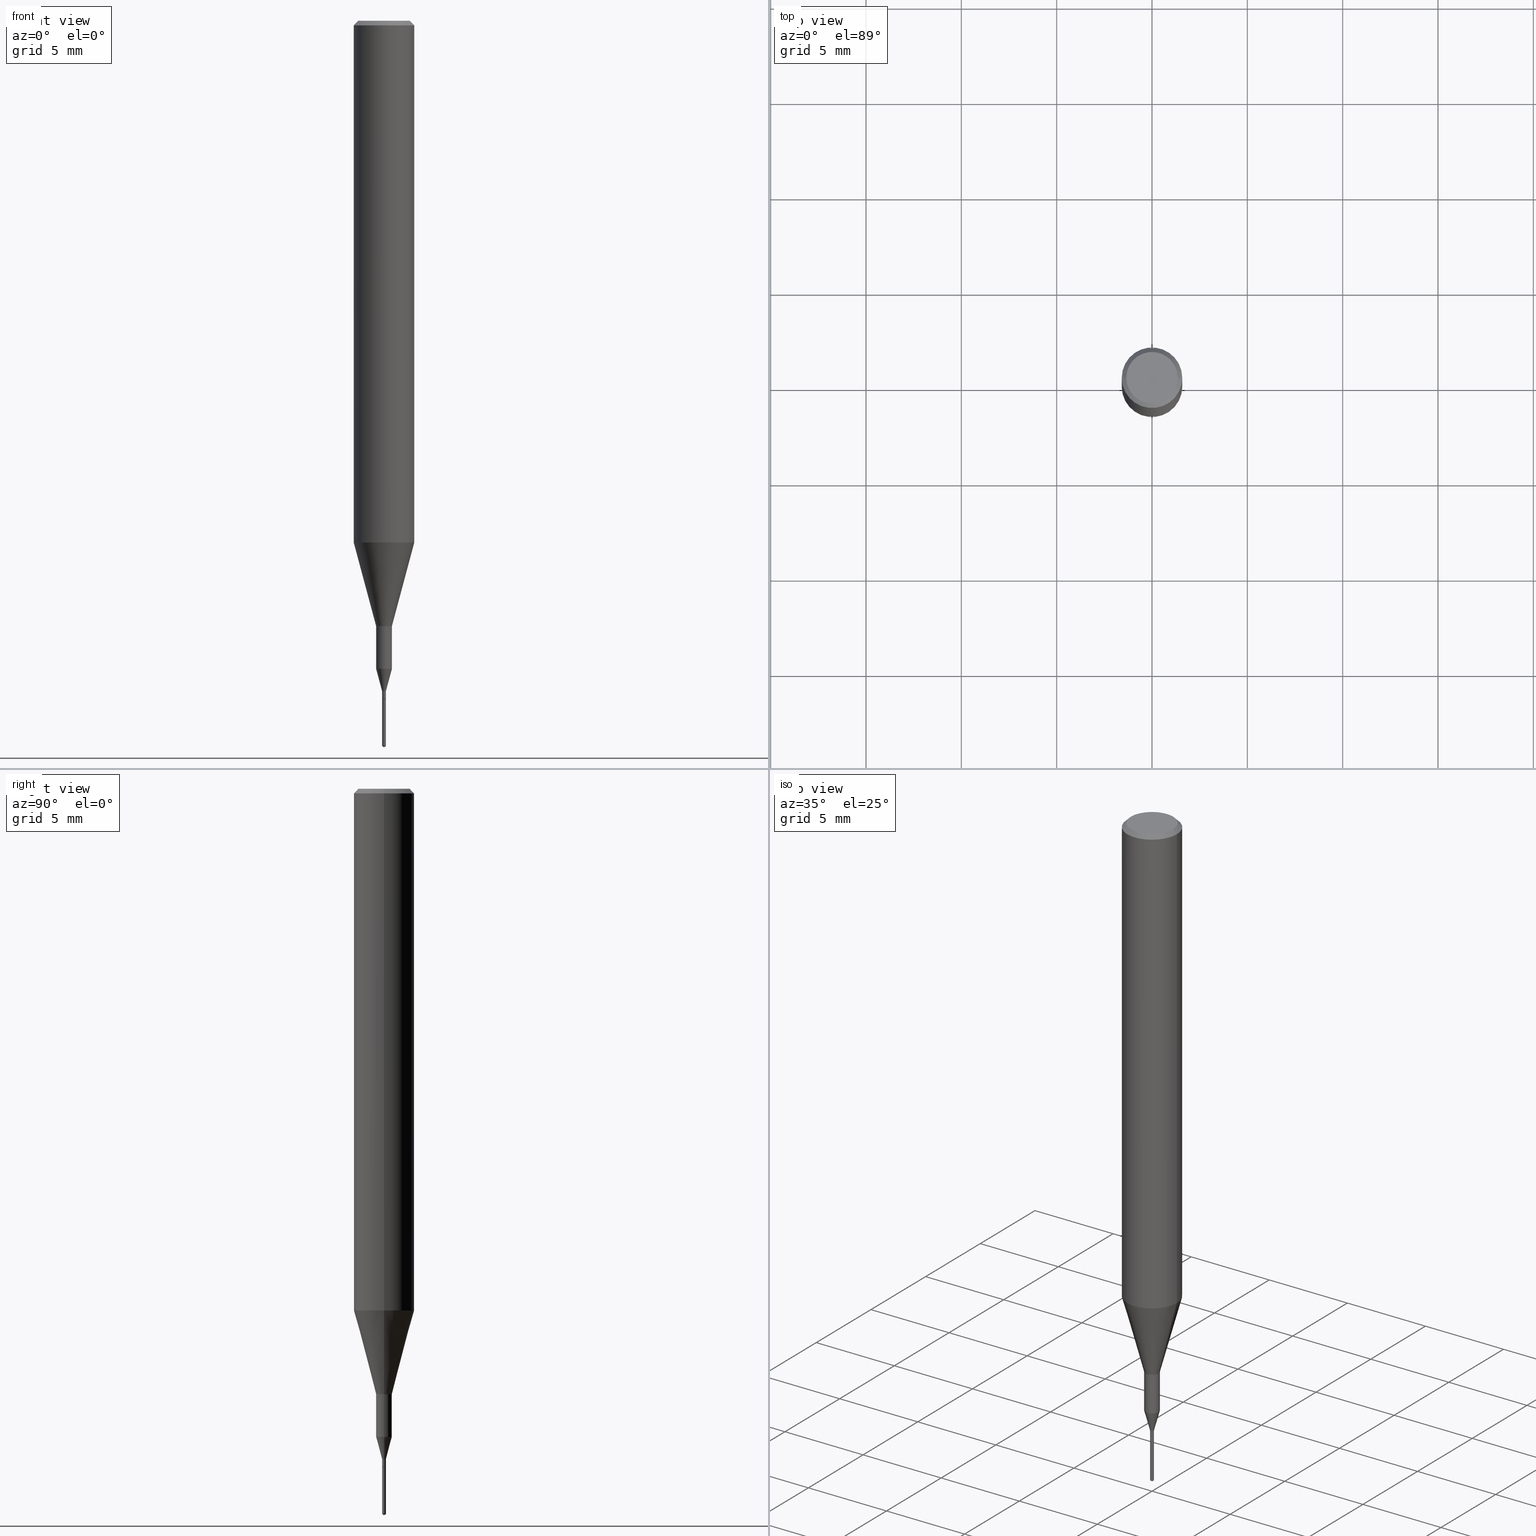
[diagram: canonical four-view strip — front | top / right | iso, engineering-drawing reading convention]
A machine part, canonical four-view strip (front | top / right | iso — engineering-drawing reading convention). The complete STEP part file that produces these views, byte-faithful:
ISO-10303-21;
HEADER;
FILE_DESCRIPTION (( 'STEP AP203' ),
    '1' );
FILE_NAME ('07078.STEP',
    '2024-04-19T13:29:38',
    ( '' ),
    ( '' ),
    'SwSTEP 2.0',
    'SolidWorks 2023',
    '' );
FILE_SCHEMA (( 'CONFIG_CONTROL_DESIGN' ));
ENDSEC;

DATA;
#1 = VECTOR ( 'NONE', #546, 39.37007874015748143 ) ;
#2 = AXIS2_PLACEMENT_3D ( 'NONE', #293, #62, #243 ) ;
#3 = VECTOR ( 'NONE', #510, 39.37007874015748854 ) ;
#4 = ORIENTED_EDGE ( 'NONE', *, *, #589, .F. ) ;
#5 = DIRECTION ( 'NONE',  ( -2.445468806185136597E-29, 3.491481338843145583E-15, 1.000000000000000000 ) ) ;
#6 = EDGE_CURVE ( 'NONE', #153, #181, #516, .T. ) ;
#7 = LINE ( 'NONE', #511, #455 ) ;
#8 = APPLICATION_CONTEXT ( 'configuration controlled 3d designs of mechanical parts and assemblies' ) ;
#9 = ORIENTED_EDGE ( 'NONE', *, *, #288, .T. ) ;
#10 = DIRECTION ( 'NONE',  ( -1.000000000000000000, 6.982962677686266711E-15, 0.000000000000000000 ) ) ;
#11 = VECTOR ( 'NONE', #93, 39.37007874015748143 ) ;
#12 = AXIS2_PLACEMENT_3D ( 'NONE', #489, #343, #80 ) ;
#13 = EDGE_CURVE ( 'NONE', #79, #117, #228, .T. ) ;
#14 = UNCERTAINTY_MEASURE_WITH_UNIT (LENGTH_MEASURE( 1.000000000000000082E-05 ), #223, 'distance_accuracy_value', 'NONE');
#15 = EDGE_LOOP ( 'NONE', ( #456, #177 ) ) ;
#16 = CARTESIAN_POINT ( 'NONE',  ( 2.292627005798581937E-31, -3.273263755165472033E-17, -0.009375000000000067307 ) ) ;
#17 = EDGE_LOOP ( 'NONE', ( #189, #75 ) ) ;
#18 = EDGE_LOOP ( 'NONE', ( #297, #391, #43 ) ) ;
#19 = MANIFOLD_SOLID_BREP ( 'Body-Move/Copy2[2]', #176 ) ;
#20 = CARTESIAN_POINT ( 'NONE',  ( 3.678012843006527062E-29, -5.223174054435368162E-15, -1.500000000000000222 ) ) ;
#21 = AXIS2_PLACEMENT_3D ( 'NONE', #541, #449, #402 ) ;
#22 = EDGE_CURVE ( 'NONE', #453, #181, #412, .T. ) ;
#23 = DIRECTION ( 'NONE',  ( 1.000000000000000000, 0.000000000000000000, 0.000000000000000000 ) ) ;
#24 = CARTESIAN_POINT ( 'NONE',  ( -9.286691297279199858E-28, 1.318548970531025661E-13, 37.87007874015748143 ) ) ;
#25 = ORIENTED_EDGE ( 'NONE', *, *, #524, .T. ) ;
#26 = EDGE_CURVE ( 'NONE', #530, #252, #317, .T. ) ;
#27 = CARTESIAN_POINT ( 'NONE',  ( -0.06250000000000000000, 4.037025298037369491E-16, -0.009375000000000067307 ) ) ;
#28 = CARTESIAN_POINT ( 'NONE',  ( -0.01624999999999999709, 1.154631945610162595E-16, -7.993269521664220284E-31 ) ) ;
#29 = EDGE_LOOP ( 'NONE', ( #68, #88, #210, #164 ) ) ;
#30 = CARTESIAN_POINT ( 'NONE',  ( 3.659701526712726431E-29, -5.249396901583489399E-15, -1.500000000000000222 ) ) ;
#31 = DATE_AND_TIME ( #490, #508 ) ;
#32 = LINE ( 'NONE', #373, #548 ) ;
#33 = EDGE_CURVE ( 'NONE', #279, #315, #184, .T. ) ;
#34 = LINE ( 'NONE', #163, #413 ) ;
#35 =( NAMED_UNIT ( * ) SI_UNIT ( $, .STERADIAN. ) SOLID_ANGLE_UNIT ( ) );
#36 = DIRECTION ( 'NONE',  ( -2.445468806185136597E-29, 3.491481338843145583E-15, 1.000000000000000000 ) ) ;
#37 = CARTESIAN_POINT ( 'NONE',  ( 0.000000000000000000, 0.000000000000000000, 0.000000000000000000 ) ) ;
#38 = EDGE_CURVE ( 'NONE', #427, #586, #182, .T. ) ;
#39 = VERTEX_POINT ( 'NONE', #540 ) ;
#40 = LINE ( 'NONE', #283, #110 ) ;
#41 = COORDINATED_UNIVERSAL_TIME_OFFSET ( 5, 0, .BEHIND. ) ;
#42 = FACE_OUTER_BOUND ( 'NONE', #98, .T. ) ;
#43 = ORIENTED_EDGE ( 'NONE', *, *, #71, .F. ) ;
#44 = VECTOR ( 'NONE', #514, 39.37007874015748143 ) ;
#45 = VECTOR ( 'NONE', #362, 39.37007874015748143 ) ;
#46 = VECTOR ( 'NONE', #105, 39.37007874015748143 ) ;
#47 = EDGE_CURVE ( 'NONE', #207, #294, #339, .T. ) ;
#48 = PERSON_AND_ORGANIZATION_ROLE ( 'classification_officer' ) ;
#49 = CC_DESIGN_PERSON_AND_ORGANIZATION_ASSIGNMENT ( #191, #48, ( #414 ) ) ;
#50 = ORIENTED_EDGE ( 'NONE', *, *, #544, .F. ) ;
#51 = DIRECTION ( 'NONE',  ( -2.452008562004351188E-29, 3.482116036290244915E-15, 1.000000000000000000 ) ) ;
#52 = CARTESIAN_POINT ( 'NONE',  ( 0.06250000000000000000, -4.691678049070464390E-16, -0.009375000000000067307 ) ) ;
#53 = APPLICATION_CONTEXT ( 'configuration controlled 3d designs of mechanical parts and assemblies' ) ;
#54 = CIRCLE ( 'NONE', #147, 0.003450000000000000809 ) ;
#55 = DIRECTION ( 'NONE',  ( 1.000000000000000000, -6.982962677686373207E-15, 0.000000000000000000 ) ) ;
#56 = CIRCLE ( 'NONE', #21, 0.06250000000000000000 ) ;
#57 = DATE_TIME_ROLE ( 'classification_date' ) ;
#58 = LOCAL_TIME ( 9, 29, 38.00000000000000000, #360 ) ;
#59 = EDGE_CURVE ( 'NONE', #542, #39, #54, .T. ) ;
#60 = DIRECTION ( 'NONE',  ( -2.452008562004351188E-29, 3.482116036290244915E-15, 1.000000000000000000 ) ) ;
#61 = ORIENTED_EDGE ( 'NONE', *, *, #300, .T. ) ;
#62 = DIRECTION ( 'NONE',  ( -2.445468806185136597E-29, 3.491481338843145583E-15, 1.000000000000000000 ) ) ;
#63 = DIRECTION ( 'NONE',  ( 1.000000000000000000, -6.982962677686233578E-15, 0.000000000000000000 ) ) ;
#64 = AXIS2_PLACEMENT_3D ( 'NONE', #323, #190, #225 ) ;
#65 = EDGE_CURVE ( 'NONE', #453, #79, #40, .T. ) ;
#66 = ADVANCED_FACE ( 'NONE', ( #126 ), #552, .T. ) ;
#67 = DIRECTION ( 'NONE',  ( 1.000000000000000000, -6.982962677686266711E-15, 4.876176775795935793E-29 ) ) ;
#68 = ORIENTED_EDGE ( 'NONE', *, *, #22, .T. ) ;
#69 = FACE_OUTER_BOUND ( 'NONE', #474, .T. ) ;
#70 = DIRECTION ( 'NONE',  ( -2.452008562004351188E-29, 3.482116036290244915E-15, 1.000000000000000000 ) ) ;
#71 = EDGE_CURVE ( 'NONE', #181, #453, #506, .T. ) ;
#72 = AXIS2_PLACEMENT_3D ( 'NONE', #212, #479, #558 ) ;
#73 = ORIENTED_EDGE ( 'NONE', *, *, #143, .F. ) ;
#74 = CYLINDRICAL_SURFACE ( 'NONE', #150, 0.003950000000000000386 ) ;
#75 = ORIENTED_EDGE ( 'NONE', *, *, #139, .T. ) ;
#76 = LINE ( 'NONE', #577, #113 ) ;
#77 = DATE_TIME_ROLE ( 'creation_date' ) ;
#78 = ORIENTED_EDGE ( 'NONE', *, *, #337, .T. ) ;
#79 = VERTEX_POINT ( 'NONE', #346 ) ;
#80 = DIRECTION ( 'NONE',  ( 1.000000000000000000, -6.982962677686258033E-15, 0.000000000000000000 ) ) ;
#81 = DIRECTION ( 'NONE',  ( 1.000000000000000000, -6.982962677686266711E-15, 4.875930095424100059E-29 ) ) ;
#82 = EDGE_LOOP ( 'NONE', ( #487, #25, #480, #429 ) ) ;
#83 = PRODUCT_DEFINITION_FORMATION_WITH_SPECIFIED_SOURCE ( 'ANY', '', #438, .NOT_KNOWN. ) ;
#84 = PLANE ( 'NONE',  #149 ) ;
#85 = DIRECTION ( 'NONE',  ( -2.445468806185136597E-29, 3.491481338843145583E-15, 1.000000000000000000 ) ) ;
#86 = VERTEX_POINT ( 'NONE', #116 ) ;
#87 = FACE_OUTER_BOUND ( 'NONE', #276, .T. ) ;
#88 = ORIENTED_EDGE ( 'NONE', *, *, #418, .T. ) ;
#89 = DIRECTION ( 'NONE',  ( 1.000000000000000000, -6.982962677686373207E-15, 0.000000000000000000 ) ) ;
#90 = LINE ( 'NONE', #545, #11 ) ;
#91 = CC_DESIGN_APPROVAL ( #409, ( #387 ) ) ;
#92 = CARTESIAN_POINT ( 'NONE',  ( 2.634730117954813298E-29, -3.761696332605275695E-15, -1.077392650149939346 ) ) ;
#93 = DIRECTION ( 'NONE',  ( -2.445468806185136877E-29, 3.491481338843145188E-15, 1.000000000000000000 ) ) ;
#94 = DIRECTION ( 'NONE',  ( -2.445468806185136877E-29, 3.491481338843145188E-15, 1.000000000000000000 ) ) ;
#95 = CYLINDRICAL_SURFACE ( 'NONE', #2, 0.06250000000000006939 ) ;
#96 = CIRCLE ( 'NONE', #377, 0.003950000000000007325 ) ;
#97 = CARTESIAN_POINT ( 'NONE',  ( 3.422433594256099443E-29, -4.886328133710982549E-15, -1.399500000000000188 ) ) ;
#98 = EDGE_LOOP ( 'NONE', ( #435, #420, #497, #512 ) ) ;
#99 = ADVANCED_FACE ( 'NONE', ( #431 ), #426, .T. ) ;
#100 = CARTESIAN_POINT ( 'NONE',  ( 2.634730117954813298E-29, -3.761696332605275695E-15, -1.077392650149939346 ) ) ;
#101 = CONICAL_SURFACE ( 'NONE', #299, 0.01625000000000000056, 0.2617993877991490193 ) ;
#102 = APPROVAL_PERSON_ORGANIZATION ( #411, #195, #462 ) ;
#103 = DIRECTION ( 'NONE',  ( -2.445468806185136597E-29, 3.491481338843145583E-15, 1.000000000000000000 ) ) ;
#104 = ORIENTED_EDGE ( 'NONE', *, *, #380, .T. ) ;
#105 = DIRECTION ( 'NONE',  ( -5.985567269335813484E-15, -0.8571673007020919055, 0.5150380749100881284 ) ) ;
#106 = EDGE_CURVE ( 'NONE', #207, #530, #519, .T. ) ;
#107 = LINE ( 'NONE', #332, #3 ) ;
#108 = CC_DESIGN_PERSON_AND_ORGANIZATION_ASSIGNMENT ( #357, #433, ( #438 ) ) ;
#109 = VERTEX_POINT ( 'NONE', #486 ) ;
#110 = VECTOR ( 'NONE', #51, 39.37007874015748143 ) ;
#111 = CIRCLE ( 'NONE', #507, 0.06250000000000012490 ) ;
#112 = ORIENTED_EDGE ( 'NONE', *, *, #579, .F. ) ;
#113 = VECTOR ( 'NONE', #172, 39.37007874015747433 ) ;
#114 = DIRECTION ( 'NONE',  ( -2.445468806185136597E-29, 3.491481338843145583E-15, 1.000000000000000000 ) ) ;
#115 = APPROVAL_ROLE ( '' ) ;
#116 = CARTESIAN_POINT ( 'NONE',  ( 0.05312499999999999861, -4.129888592719939842E-16, -5.787680772767651417E-18 ) ) ;
#117 = VERTEX_POINT ( 'NONE', #556 ) ;
#118 = EDGE_LOOP ( 'NONE', ( #193, #322, #158, #442 ) ) ;
#119 = CC_DESIGN_PERSON_AND_ORGANIZATION_ASSIGNMENT ( #485, #354, ( #387 ) ) ;
#120 = CALENDAR_DATE ( 2024, 19, 4 ) ;
#121 = CARTESIAN_POINT ( 'NONE',  ( 2.806643806256057432E-17, 0.003949999999994771062, -1.497626600554841092 ) ) ;
#122 = ORIENTED_EDGE ( 'NONE', *, *, #335, .T. ) ;
#123 = CARTESIAN_POINT ( 'NONE',  ( -0.06250000000000006939, 4.440892098500631092E-16, -3.074334431409319267E-30 ) ) ;
#124 = PERSON_AND_ORGANIZATION ( #137, #205 ) ;
#125 = CARTESIAN_POINT ( 'NONE',  ( -0.01625000000000000056, -4.557171529937700080E-15, -1.338295775066903115 ) ) ;
#126 = FACE_OUTER_BOUND ( 'NONE', #82, .T. ) ;
#127 = CIRCLE ( 'NONE', #166, 0.06250000000000000000 ) ;
#128 = COORDINATED_UNIVERSAL_TIME_OFFSET ( 5, 0, .BEHIND. ) ;
#129 = CARTESIAN_POINT ( 'NONE',  ( 0.01624999999999999709, -1.134731435124018242E-16, 7.923787260668394963E-31 ) ) ;
#130 = EDGE_LOOP ( 'NONE', ( #229, #375, #135, #353 ) ) ;
#131 = CARTESIAN_POINT ( 'NONE',  ( 3.272760571375472181E-29, -4.672634724498716266E-15, -1.338295775066903115 ) ) ;
#132 = ADVANCED_FACE ( 'NONE', ( #522 ), #281, .T. ) ;
#133 = APPROVAL_STATUS ( 'not_yet_approved' ) ;
#134 = DIRECTION ( 'NONE',  ( 1.000000000000000000, -6.982962677686373207E-15, 0.000000000000000000 ) ) ;
#135 = ORIENTED_EDGE ( 'NONE', *, *, #206, .T. ) ;
#136 = DIRECTION ( 'NONE',  ( 2.445468806185136597E-29, -3.491481338843145583E-15, -1.000000000000000000 ) ) ;
#137 = PERSON ( 'UNSPECIFIED', 'UNSPECIFIED', 'UNSPECIFIED', ('UNSPECIFIED'), ('UNSPECIFIED'), ('UNSPECIFIED') ) ;
#138 = LOCAL_TIME ( 9, 29, 38.00000000000000000, #439 ) ;
#139 = EDGE_CURVE ( 'NONE', #86, #159, #523, .T. ) ;
#140 = APPROVAL_PERSON_ORGANIZATION ( #521, #286, #267 ) ;
#141 = LINE ( 'NONE', #588, #330 ) ;
#142 = ADVANCED_FACE ( 'NONE', ( #157 ), #567, .F. ) ;
#143 = EDGE_CURVE ( 'NONE', #477, #586, #127, .T. ) ;
#144 = ADVANCED_FACE ( 'NONE', ( #69 ), #307, .T. ) ;
#145 = DIRECTION ( 'NONE',  ( -6.982962677686265922E-15, -1.000000000000000000, 0.000000000000000000 ) ) ;
#146 = DIRECTION ( 'NONE',  ( 1.000000000000000000, -6.982962677686264344E-15, 0.000000000000000000 ) ) ;
#147 = AXIS2_PLACEMENT_3D ( 'NONE', #500, #404, #89 ) ;
#148 = FACE_OUTER_BOUND ( 'NONE', #17, .T. ) ;
#149 = AXIS2_PLACEMENT_3D ( 'NONE', #275, #469, #334 ) ;
#150 = AXIS2_PLACEMENT_3D ( 'NONE', #262, #432, #501 ) ;
#151 = DIRECTION ( 'NONE',  ( 1.000000000000000000, -6.982962677686183091E-15, 0.000000000000000000 ) ) ;
#152 = DIRECTION ( 'NONE',  ( -2.445468806185136597E-29, 3.491481338843145583E-15, 1.000000000000000000 ) ) ;
#153 = VERTEX_POINT ( 'NONE', #20 ) ;
#154 = AXIS2_PLACEMENT_3D ( 'NONE', #131, #461, #359 ) ;
#155 = CONICAL_SURFACE ( 'NONE', #383, 0.003450000000000000809, 0.7853981633975555265 ) ;
#156 = VECTOR ( 'NONE', #566, 39.37007874015748143 ) ;
#157 = FACE_OUTER_BOUND ( 'NONE', #167, .T. ) ;
#158 = ORIENTED_EDGE ( 'NONE', *, *, #547, .F. ) ;
#159 = VERTEX_POINT ( 'NONE', #384 ) ;
#160 = ADVANCED_FACE ( 'NONE', ( #562 ), #483, .T. ) ;
#161 = DIRECTION ( 'NONE',  ( -2.445468806185136597E-29, 3.491481338843145583E-15, 1.000000000000000000 ) ) ;
#162 = FACE_OUTER_BOUND ( 'NONE', #389, .T. ) ;
#163 = CARTESIAN_POINT ( 'NONE',  ( 0.01625000000000000056, -4.786107868011117942E-15, -1.338295775066903115 ) ) ;
#164 = ORIENTED_EDGE ( 'NONE', *, *, #65, .F. ) ;
#165 = CLOSED_SHELL ( 'NONE', ( #531, #144, #242, #460, #142 ) ) ;
#166 = AXIS2_PLACEMENT_3D ( 'NONE', #16, #302, #476 ) ;
#167 = EDGE_LOOP ( 'NONE', ( #379, #122 ) ) ;
#168 = ORIENTED_EDGE ( 'NONE', *, *, #65, .T. ) ;
#169 = APPROVAL_DATE_TIME ( #537, #409 ) ;
#170 = CARTESIAN_POINT ( 'NONE',  ( 0.01624999999999999709, -4.477824817066334148E-15, -1.250000000000000000 ) ) ;
#171 = EDGE_CURVE ( 'NONE', #39, #542, #258, .T. ) ;
#172 = DIRECTION ( 'NONE',  ( -0.2588190451025214611, 5.211531920934551042E-15, 0.9659258262890682012 ) ) ;
#173 = CARTESIAN_POINT ( 'NONE',  ( 0.000000000000000000, 0.000000000000000000, 0.000000000000000000 ) ) ;
#174 = FACE_OUTER_BOUND ( 'NONE', #15, .T. ) ;
#175 = CYLINDRICAL_SURFACE ( 'NONE', #318, 0.003950000000000021202 ) ;
#176 = CLOSED_SHELL ( 'NONE', ( #535, #422, #66, #568, #324, #232, #488, #356, #244, #518, #274, #160, #132, #99, #405, #394 ) ) ;
#177 = ORIENTED_EDGE ( 'NONE', *, *, #59, .F. ) ;
#178 = AXIS2_PLACEMENT_3D ( 'NONE', #581, #538, #55 ) ;
#179 = EDGE_CURVE ( 'NONE', #245, #315, #585, .T. ) ;
#180 = LINE ( 'NONE', #238, #198 ) ;
#181 = VERTEX_POINT ( 'NONE', #121 ) ;
#182 = LINE ( 'NONE', #123, #1 ) ;
#183 = CARTESIAN_POINT ( 'NONE',  ( -2.758270257682411282E-17, -0.003950000000005227108, -1.497626600554841092 ) ) ;
#184 = CIRCLE ( 'NONE', #270, 0.003950000000000035948 ) ;
#185 = DIRECTION ( 'NONE',  ( 1.000000000000000000, -6.982962677686233578E-15, 0.000000000000000000 ) ) ;
#186 = CONICAL_SURFACE ( 'NONE', #553, 0.06250000000000000000, 0.7853981633974452814 ) ;
#187 = CALENDAR_DATE ( 2024, 19, 4 ) ;
#188 = CYLINDRICAL_SURFACE ( 'NONE', #349, 0.003950000000000000386 ) ;
#189 = ORIENTED_EDGE ( 'NONE', *, *, #213, .T. ) ;
#190 = DIRECTION ( 'NONE',  ( -2.452008562004351188E-29, 3.482116036290244915E-15, 1.000000000000000000 ) ) ;
#191 = PERSON_AND_ORGANIZATION ( #137, #205 ) ;
#192 = DIRECTION ( 'NONE',  ( 1.000000000000000000, -6.982962677686373207E-15, 0.000000000000000000 ) ) ;
#193 = ORIENTED_EDGE ( 'NONE', *, *, #33, .T. ) ;
#194 = DIRECTION ( 'NONE',  ( 2.445468806185136597E-29, -3.491481338843145583E-15, -1.000000000000000000 ) ) ;
#195 = APPROVAL ( #133, 'UNSPECIFIED' ) ;
#196 = ORIENTED_EDGE ( 'NONE', *, *, #47, .F. ) ;
#197 = CARTESIAN_POINT ( 'NONE',  ( 7.076796394983739835E-47, -1.010378970665454992E-32, -2.893840386385196200E-18 ) ) ;
#198 = VECTOR ( 'NONE', #505, 39.37007874015747433 ) ;
#199 = CARTESIAN_POINT ( 'NONE',  ( 2.634730117954813298E-29, -3.761696332605275695E-15, -1.077392650149939346 ) ) ;
#200 = CARTESIAN_POINT ( 'NONE',  ( 3.678173411635649529E-29, -5.223174054435366584E-15, -1.500000000000000222 ) ) ;
#201 = ADVANCED_BREP_SHAPE_REPRESENTATION ( '07078', ( #590, #19, #573 ), #350 ) ;
#202 = CARTESIAN_POINT ( 'NONE',  ( 3.056836007731421306E-29, -4.364351673553932471E-15, -1.250000000000000000 ) ) ;
#203 = LINE ( 'NONE', #30, #46 ) ;
#204 = AXIS2_PLACEMENT_3D ( 'NONE', #260, #336, #251 ) ;
#205 = ORGANIZATION ( 'UNSPECIFIED', 'UNSPECIFIED', '' ) ;
#206 = EDGE_CURVE ( 'NONE', #294, #252, #358, .T. ) ;
#207 = VERTEX_POINT ( 'NONE', #416 ) ;
#208 = CARTESIAN_POINT ( 'NONE',  ( 0.06250000000000000000, -4.615137624123754923E-16, -0.009375000000000067307 ) ) ;
#209 = FACE_OUTER_BOUND ( 'NONE', #388, .T. ) ;
#210 = ORIENTED_EDGE ( 'NONE', *, *, #13, .F. ) ;
#211 = ORIENTED_EDGE ( 'NONE', *, *, #71, .T. ) ;
#212 = CARTESIAN_POINT ( 'NONE',  ( 1.415359278996747967E-46, -2.020757941330909984E-32, -5.787680772770392401E-18 ) ) ;
#213 = EDGE_CURVE ( 'NONE', #159, #86, #237, .T. ) ;
#214 = ORIENTED_EDGE ( 'NONE', *, *, #106, .T. ) ;
#215 = DIRECTION ( 'NONE',  ( 6.090539988449647485E-15, 0.8571673007020955692, 0.5150380749100821332 ) ) ;
#216 = ORIENTED_EDGE ( 'NONE', *, *, #179, .F. ) ;
#217 = CALENDAR_DATE ( 2024, 19, 4 ) ;
#218 = CONICAL_SURFACE ( 'NONE', #64, 65.52281426576307410, 1.029744258676618340 ) ;
#219 = CARTESIAN_POINT ( 'NONE',  ( 3.423656328659191123E-29, -4.888073874380404052E-15, -1.400000000000000133 ) ) ;
#220 = CONICAL_SURFACE ( 'NONE', #284, 0.06250000000000000000, 0.7853981633974452814 ) ;
#221 = ORIENTED_EDGE ( 'NONE', *, *, #22, .F. ) ;
#222 = CARTESIAN_POINT ( 'NONE',  ( 0.000000000000000000, 0.000000000000000000, 0.000000000000000000 ) ) ;
#223 =( CONVERSION_BASED_UNIT ( 'INCH', #448 ) LENGTH_UNIT ( ) NAMED_UNIT ( #347 ) );
#224 = DIRECTION ( 'NONE',  ( 1.000000000000000000, -6.982962677686258033E-15, 0.000000000000000000 ) ) ;
#225 = DIRECTION ( 'NONE',  ( -6.982962677686265133E-15, -1.000000000000000000, 3.468864327941877810E-15 ) ) ;
#226 = ORIENTED_EDGE ( 'NONE', *, *, #213, .F. ) ;
#227 = PERSON_AND_ORGANIZATION ( #137, #205 ) ;
#228 = CIRCLE ( 'NONE', #236, 0.003950000000000000386 ) ;
#229 = ORIENTED_EDGE ( 'NONE', *, *, #106, .F. ) ;
#230 = AXIS2_PLACEMENT_3D ( 'NONE', #551, #555, #151 ) ;
#231 = PRODUCT_DEFINITION_SHAPE ( 'NONE', 'NONE',  #387 ) ;
#232 = ADVANCED_FACE ( 'NONE', ( #533 ), #175, .T. ) ;
#233 = EDGE_LOOP ( 'NONE', ( #397, #382, #342, #112 ) ) ;
#234 = DIRECTION ( 'NONE',  ( -2.445468806185136597E-29, 3.491481338843145583E-15, 1.000000000000000000 ) ) ;
#235 = EDGE_CURVE ( 'NONE', #315, #207, #550, .T. ) ;
#236 = AXIS2_PLACEMENT_3D ( 'NONE', #303, #478, #392 ) ;
#237 = CIRCLE ( 'NONE', #325, 0.05312499999999999861 ) ;
#238 = CARTESIAN_POINT ( 'NONE',  ( 0.06250000000000012490, -4.198131499960668153E-15, -1.077392650149939346 ) ) ;
#239 = DATE_AND_TIME ( #217, #138 ) ;
#240 = DIRECTION ( 'NONE',  ( -2.445468806185136597E-29, 3.491481338843145583E-15, 1.000000000000000000 ) ) ;
#241 = ORIENTED_EDGE ( 'NONE', *, *, #454, .F. ) ;
#242 = ADVANCED_FACE ( 'NONE', ( #272 ), #218, .T. ) ;
#243 = DIRECTION ( 'NONE',  ( 1.000000000000000000, -6.982962677686266711E-15, 4.876176775795935793E-29 ) ) ;
#244 = ADVANCED_FACE ( 'NONE', ( #42 ), #292, .T. ) ;
#245 = VERTEX_POINT ( 'NONE', #446 ) ;
#246 = DIRECTION ( 'NONE',  ( 1.000000000000000000, -6.982962677686264344E-15, 0.000000000000000000 ) ) ;
#247 = AXIS2_PLACEMENT_3D ( 'NONE', #473, #152, #67 ) ;
#248 = VECTOR ( 'NONE', #215, 39.37007874015748854 ) ;
#249 = CONICAL_SURFACE ( 'NONE', #393, 0.01625000000000000056, 0.2617993877991490193 ) ;
#250 = AXIS2_PLACEMENT_3D ( 'NONE', #305, #565, #371 ) ;
#251 = DIRECTION ( 'NONE',  ( 6.982962677686265922E-15, 1.000000000000000000, -3.482116036290244915E-15 ) ) ;
#252 = VERTEX_POINT ( 'NONE', #170 ) ;
#253 = DIRECTION ( 'NONE',  ( -1.000000000000000000, 6.982962677686266711E-15, 0.000000000000000000 ) ) ;
#254 = EDGE_CURVE ( 'NONE', #542, #245, #32, .T. ) ;
#255 = DIRECTION ( 'NONE',  ( -6.982962677686265922E-15, -1.000000000000000000, 0.000000000000000000 ) ) ;
#256 = CARTESIAN_POINT ( 'NONE',  ( -0.003450000000000000809, -4.860910922822568939E-15, -1.400000000000000133 ) ) ;
#257 = AXIS2_PLACEMENT_3D ( 'NONE', #92, #316, #492 ) ;
#258 = CIRCLE ( 'NONE', #559, 0.003450000000000000809 ) ;
#259 = LOCAL_TIME ( 9, 29, 38.00000000000000000, #41 ) ;
#260 = CARTESIAN_POINT ( 'NONE',  ( 3.423656328659191123E-29, -4.888073874380404052E-15, -1.400000000000000133 ) ) ;
#261 = ORIENTED_EDGE ( 'NONE', *, *, #380, .F. ) ;
#262 = CARTESIAN_POINT ( 'NONE',  ( 3.423656328659191123E-29, -4.888073874380404052E-15, -1.400000000000000133 ) ) ;
#263 = CC_DESIGN_DATE_AND_TIME_ASSIGNMENT ( #31, #77, ( #387 ) ) ;
#264 = DIRECTION ( 'NONE',  ( 0.000000000000000000, 0.000000000000000000, 1.000000000000000000 ) ) ;
#265 = CARTESIAN_POINT ( 'NONE',  ( 0.000000000000000000, 0.000000000000000000, 0.000000000000000000 ) ) ;
#266 = ORIENTED_EDGE ( 'NONE', *, *, #589, .T. ) ;
#267 = APPROVAL_ROLE ( '' ) ;
#268 = DIRECTION ( 'NONE',  ( -2.445468806185136597E-29, 3.491481338843145583E-15, 1.000000000000000000 ) ) ;
#269 = LINE ( 'NONE', #208, #554 ) ;
#270 = AXIS2_PLACEMENT_3D ( 'NONE', #457, #498, #287 ) ;
#271 = VECTOR ( 'NONE', #319, 39.37007874015748143 ) ;
#272 = FACE_OUTER_BOUND ( 'NONE', #18, .T. ) ;
#273 = ORIENTED_EDGE ( 'NONE', *, *, #335, .F. ) ;
#274 = ADVANCED_FACE ( 'NONE', ( #291 ), #249, .T. ) ;
#275 = CARTESIAN_POINT ( 'NONE',  ( 3.423656328659191123E-29, -4.888073874380404052E-15, -1.400000000000000133 ) ) ;
#276 = EDGE_LOOP ( 'NONE', ( #484, #403, #557, #4 ) ) ;
#277 = CALENDAR_DATE ( 2024, 19, 4 ) ;
#278 = DIRECTION ( 'NONE',  ( 1.000000000000000000, -6.982962677686258033E-15, 0.000000000000000000 ) ) ;
#279 = VERTEX_POINT ( 'NONE', #321 ) ;
#280 = CARTESIAN_POINT ( 'NONE',  ( 2.292627005798581937E-31, -3.273263755165472033E-17, -0.009375000000000067307 ) ) ;
#281 = CONICAL_SURFACE ( 'NONE', #569, 0.06250000000000012490, 0.2617993877991501295 ) ;
#282 = ORIENTED_EDGE ( 'NONE', *, *, #547, .T. ) ;
#283 = CARTESIAN_POINT ( 'NONE',  ( -2.758270257682651329E-17, -0.003950000000004887969, -1.400000000000000133 ) ) ;
#284 = AXIS2_PLACEMENT_3D ( 'NONE', #280, #136, #253 ) ;
#285 = PERSON_AND_ORGANIZATION_ROLE ( 'design_supplier' ) ;
#286 = APPROVAL ( #308, 'UNSPECIFIED' ) ;
#287 = DIRECTION ( 'NONE',  ( 1.000000000000000000, -6.982962677686183091E-15, 0.000000000000000000 ) ) ;
#288 = EDGE_CURVE ( 'NONE', #109, #427, #572, .T. ) ;
#289 = COORDINATED_UNIVERSAL_TIME_OFFSET ( 5, 0, .BEHIND. ) ;
#290 = CARTESIAN_POINT ( 'NONE',  ( 3.423656328659191123E-29, -4.888073874380404052E-15, -1.400000000000000133 ) ) ;
#291 = FACE_OUTER_BOUND ( 'NONE', #441, .T. ) ;
#292 = CONICAL_SURFACE ( 'NONE', #178, 0.003450000000000000809, 0.7853981633975555265 ) ;
#293 = CARTESIAN_POINT ( 'NONE',  ( 0.000000000000000000, 0.000000000000000000, 0.000000000000000000 ) ) ;
#294 = VERTEX_POINT ( 'NONE', #529 ) ;
#295 = DIRECTION ( 'NONE',  ( -2.445468806185136597E-29, 3.491481338843145583E-15, 1.000000000000000000 ) ) ;
#296 = CARTESIAN_POINT ( 'NONE',  ( -0.06250000000000000000, -1.453125275228401137E-15, -0.009375000000000067307 ) ) ;
#297 = ORIENTED_EDGE ( 'NONE', *, *, #6, .F. ) ;
#298 = DIRECTION ( 'NONE',  ( -2.452008562004351188E-29, 3.482116036290244915E-15, 1.000000000000000000 ) ) ;
#299 = AXIS2_PLACEMENT_3D ( 'NONE', #494, #36, #224 ) ;
#300 = EDGE_CURVE ( 'NONE', #252, #109, #180, .T. ) ;
#301 = DIRECTION ( 'NONE',  ( -6.982962677686265922E-15, -1.000000000000000000, 0.000000000000000000 ) ) ;
#302 = DIRECTION ( 'NONE',  ( -2.445468806185136597E-29, 3.491481338843145583E-15, 1.000000000000000000 ) ) ;
#303 = CARTESIAN_POINT ( 'NONE',  ( 3.423656328659191123E-29, -4.888073874380404052E-15, -1.400000000000000133 ) ) ;
#304 = DIRECTION ( 'NONE',  ( 1.000000000000000000, -6.982962677686264344E-15, 0.000000000000000000 ) ) ;
#305 = CARTESIAN_POINT ( 'NONE',  ( 0.000000000000000000, 0.000000000000000000, 0.000000000000000000 ) ) ;
#306 = CC_DESIGN_DATE_AND_TIME_ASSIGNMENT ( #451, #57, ( #414 ) ) ;
#307 = CONICAL_SURFACE ( 'NONE', #536, 65.52281426576307410, 1.029744258676618340 ) ;
#308 = APPROVAL_STATUS ( 'not_yet_approved' ) ;
#309 = EDGE_LOOP ( 'NONE', ( #491, #104, #534, #338 ) ) ;
#310 = ORIENTED_EDGE ( 'NONE', *, *, #26, .T. ) ;
#311 = ORIENTED_EDGE ( 'NONE', *, *, #38, .T. ) ;
#312 = DIRECTION ( 'NONE',  ( 1.000000000000000000, -6.982962677686288799E-15, 0.000000000000000000 ) ) ;
#313 =( NAMED_UNIT ( * ) PLANE_ANGLE_UNIT ( ) SI_UNIT ( $, .RADIAN. ) );
#314 = CARTESIAN_POINT ( 'NONE',  ( -0.003950000000000021202, 2.806643806252410799E-17, -1.942979360650698347E-31 ) ) ;
#315 = VERTEX_POINT ( 'NONE', #329 ) ;
#316 = DIRECTION ( 'NONE',  ( -2.445468806185136597E-29, 3.491481338843145583E-15, 1.000000000000000000 ) ) ;
#317 = CIRCLE ( 'NONE', #499, 0.01624999999999999709 ) ;
#318 = AXIS2_PLACEMENT_3D ( 'NONE', #37, #5, #355 ) ;
#319 = DIRECTION ( 'NONE',  ( -2.445468806185136877E-29, 3.491481338843145188E-15, 1.000000000000000000 ) ) ;
#320 = CC_DESIGN_APPROVAL ( #286, ( #83 ) ) ;
#321 = CARTESIAN_POINT ( 'NONE',  ( 0.003950000000000035948, -4.860491171803543507E-15, -1.384200000000000319 ) ) ;
#322 = ORIENTED_EDGE ( 'NONE', *, *, #235, .T. ) ;
#323 = CARTESIAN_POINT ( 'NONE',  ( -9.286691297279199858E-28, 1.318548970531025661E-13, 37.87007874015748143 ) ) ;
#324 = ADVANCED_FACE ( 'NONE', ( #440 ), #101, .T. ) ;
#325 = AXIS2_PLACEMENT_3D ( 'NONE', #452, #85, #81 ) ;
#326 = AXIS2_PLACEMENT_3D ( 'NONE', #396, #464, #146 ) ;
#327 = FACE_OUTER_BOUND ( 'NONE', #415, .T. ) ;
#328 = APPROVAL_DATE_TIME ( #239, #286 ) ;
#329 = CARTESIAN_POINT ( 'NONE',  ( -0.003950000000000035080, -4.831551863406308339E-15, -1.384200000000000319 ) ) ;
#330 = VECTOR ( 'NONE', #463, 39.37007874015748143 ) ;
#331 = DIRECTION ( 'NONE',  ( -1.000000000000000000, 6.982962677686265922E-15, -4.876176775795935793E-29 ) ) ;
#332 = CARTESIAN_POINT ( 'NONE',  ( 0.003450000000000000809, -4.912165095618421590E-15, -1.400000000000000133 ) ) ;
#333 = ORIENTED_EDGE ( 'NONE', *, *, #206, .F. ) ;
#334 = DIRECTION ( 'NONE',  ( 1.000000000000000000, -6.982962677686265922E-15, 4.876176775795935793E-29 ) ) ;
#335 = EDGE_CURVE ( 'NONE', #117, #79, #515, .T. ) ;
#336 = DIRECTION ( 'NONE',  ( 2.452008562004350908E-29, -3.482116036290244915E-15, -1.000000000000000000 ) ) ;
#337 = EDGE_CURVE ( 'NONE', #586, #477, #56, .T. ) ;
#338 = ORIENTED_EDGE ( 'NONE', *, *, #337, .F. ) ;
#339 = CIRCLE ( 'NONE', #154, 0.01625000000000000056 ) ;
#340 = CIRCLE ( 'NONE', #12, 0.01625000000000000056 ) ;
#341 = DESIGN_CONTEXT ( 'detailed design', #8, 'design' ) ;
#342 = ORIENTED_EDGE ( 'NONE', *, *, #374, .F. ) ;
#343 = DIRECTION ( 'NONE',  ( -2.445468806185136597E-29, 3.491481338843145583E-15, 1.000000000000000000 ) ) ;
#344 = ORIENTED_EDGE ( 'NONE', *, *, #33, .F. ) ;
#345 = APPROVAL_STATUS ( 'not_yet_approved' ) ;
#346 = CARTESIAN_POINT ( 'NONE',  ( -2.758270257682651638E-17, -0.003950000000004888837, -1.400000000000000133 ) ) ;
#347 = DIMENSIONAL_EXPONENTS ( 1.000000000000000000, 0.000000000000000000, 0.000000000000000000, 0.000000000000000000, 0.000000000000000000, 0.000000000000000000, 0.000000000000000000 ) ;
#348 = VERTEX_POINT ( 'NONE', #575 ) ;
#349 = AXIS2_PLACEMENT_3D ( 'NONE', #458, #60, #145 ) ;
#350 =( GEOMETRIC_REPRESENTATION_CONTEXT ( 3 ) GLOBAL_UNCERTAINTY_ASSIGNED_CONTEXT ( ( #14 ) ) GLOBAL_UNIT_ASSIGNED_CONTEXT ( ( #223, #313, #35 ) ) REPRESENTATION_CONTEXT ( 'NONE', 'WORKASPACE' ) );
#351 = MECHANICAL_CONTEXT ( 'NONE', #53, 'mechanical' ) ;
#352 = ORIENTED_EDGE ( 'NONE', *, *, #454, .T. ) ;
#353 = ORIENTED_EDGE ( 'NONE', *, *, #26, .F. ) ;
#354 = PERSON_AND_ORGANIZATION_ROLE ( 'creator' ) ;
#355 = DIRECTION ( 'NONE',  ( 1.000000000000000000, -6.982962677686266711E-15, 4.876176775795935793E-29 ) ) ;
#356 = ADVANCED_FACE ( 'NONE', ( #174 ), #84, .F. ) ;
#357 = PERSON_AND_ORGANIZATION ( #137, #205 ) ;
#358 = LINE ( 'NONE', #129, #472 ) ;
#359 = DIRECTION ( 'NONE',  ( 1.000000000000000000, -6.982962677686258033E-15, 0.000000000000000000 ) ) ;
#360 = COORDINATED_UNIVERSAL_TIME_OFFSET ( 5, 0, .BEHIND. ) ;
#361 = CIRCLE ( 'NONE', #230, 0.003950000000000035948 ) ;
#362 = DIRECTION ( 'NONE',  ( -0.2588190451025203509, 5.211531920934543942E-15, 0.9659258262890684232 ) ) ;
#363 = APPROVAL_PERSON_ORGANIZATION ( #124, #409, #115 ) ;
#364 = ORIENTED_EDGE ( 'NONE', *, *, #374, .T. ) ;
#365 = DIRECTION ( 'NONE',  ( -2.452008562004351188E-29, 3.482116036290244915E-15, 1.000000000000000000 ) ) ;
#366 = ORIENTED_EDGE ( 'NONE', *, *, #418, .F. ) ;
#367 = PRODUCT_RELATED_PRODUCT_CATEGORY ( 'detail', '', ( #438 ) ) ;
#368 = EDGE_CURVE ( 'NONE', #315, #279, #361, .T. ) ;
#369 = SECURITY_CLASSIFICATION_LEVEL ( 'unclassified' ) ;
#370 = FACE_OUTER_BOUND ( 'NONE', #233, .T. ) ;
#371 = DIRECTION ( 'NONE',  ( 1.000000000000000000, -6.982962677686267499E-15, 4.876176775795936353E-29 ) ) ;
#372 = CARTESIAN_POINT ( 'NONE',  ( 3.422433594256099443E-29, -4.886328133710982549E-15, -1.399500000000000188 ) ) ;
#373 = CARTESIAN_POINT ( 'NONE',  ( -0.003450000000000000809, -4.863560149996680140E-15, -1.400000000000000133 ) ) ;
#374 = EDGE_CURVE ( 'NONE', #348, #245, #96, .T. ) ;
#375 = ORIENTED_EDGE ( 'NONE', *, *, #47, .T. ) ;
#376 = DIRECTION ( 'NONE',  ( 2.438088387897960049E-29, -3.491481338843145188E-15, -1.000000000000000000 ) ) ;
#377 = AXIS2_PLACEMENT_3D ( 'NONE', #97, #295, #63 ) ;
#378 = CARTESIAN_POINT ( 'NONE',  ( 2.292627005798581937E-31, -3.273263755165472033E-17, -0.009375000000000067307 ) ) ;
#379 = ORIENTED_EDGE ( 'NONE', *, *, #13, .T. ) ;
#380 = EDGE_CURVE ( 'NONE', #427, #109, #111, .T. ) ;
#381 = ORIENTED_EDGE ( 'NONE', *, *, #513, .T. ) ;
#382 = ORIENTED_EDGE ( 'NONE', *, *, #254, .T. ) ;
#383 = AXIS2_PLACEMENT_3D ( 'NONE', #290, #240, #192 ) ;
#384 = CARTESIAN_POINT ( 'NONE',  ( -0.05312499999999999861, 3.873362110279099094E-16, -5.787680772773044021E-18 ) ) ;
#385 = DIRECTION ( 'NONE',  ( 0.7071067811865453523, -7.319954787623248157E-15, -0.7071067811865496822 ) ) ;
#386 = FACE_OUTER_BOUND ( 'NONE', #29, .T. ) ;
#387 = PRODUCT_DEFINITION ( 'UNKNOWN', '', #83, #341 ) ;
#388 = EDGE_LOOP ( 'NONE', ( #216, #410, #352, #504 ) ) ;
#389 = EDGE_LOOP ( 'NONE', ( #282, #214, #50, #333 ) ) ;
#390 = DIRECTION ( 'NONE',  ( -6.982962677686265133E-15, -1.000000000000000000, 3.468864327941877810E-15 ) ) ;
#391 = ORIENTED_EDGE ( 'NONE', *, *, #517, .T. ) ;
#392 = DIRECTION ( 'NONE',  ( -6.982962677686266711E-15, -1.000000000000000000, 0.000000000000000000 ) ) ;
#393 = AXIS2_PLACEMENT_3D ( 'NONE', #495, #578, #278 ) ;
#394 = ADVANCED_FACE ( 'NONE', ( #148 ), #421, .F. ) ;
#395 = AXIS2_PLACEMENT_3D ( 'NONE', #222, #114, #398 ) ;
#396 = CARTESIAN_POINT ( 'NONE',  ( 2.634730117954813298E-29, -3.761696332605275695E-15, -1.077392650149939346 ) ) ;
#397 = ORIENTED_EDGE ( 'NONE', *, *, #171, .T. ) ;
#398 = DIRECTION ( 'NONE',  ( 1.000000000000000000, -6.982962677686266711E-15, 4.876176775795935793E-29 ) ) ;
#399 = DIRECTION ( 'NONE',  ( -6.982962677686266711E-15, -1.000000000000000000, 0.000000000000000000 ) ) ;
#400 = ORIENTED_EDGE ( 'NONE', *, *, #368, .T. ) ;
#401 = CARTESIAN_POINT ( 'NONE',  ( 3.663037589099040294E-29, -5.228021025740917797E-15, -1.497626600554841092 ) ) ;
#402 = DIRECTION ( 'NONE',  ( 1.000000000000000000, -6.982962677686266711E-15, 0.000000000000000000 ) ) ;
#403 = ORIENTED_EDGE ( 'NONE', *, *, #560, .T. ) ;
#404 = DIRECTION ( 'NONE',  ( -2.445468806185136597E-29, 3.491481338843145583E-15, 1.000000000000000000 ) ) ;
#405 = ADVANCED_FACE ( 'NONE', ( #468 ), #186, .T. ) ;
#406 = PERSON_AND_ORGANIZATION ( #137, #205 ) ;
#407 = AXIS2_PLACEMENT_3D ( 'NONE', #219, #365, #399 ) ;
#408 = DIRECTION ( 'NONE',  ( -0.7071067811866232899, 7.493145998870627106E-15, 0.7071067811864715225 ) ) ;
#409 = APPROVAL ( #345, 'UNSPECIFIED' ) ;
#410 = ORIENTED_EDGE ( 'NONE', *, *, #437, .T. ) ;
#411 = PERSON_AND_ORGANIZATION ( #137, #205 ) ;
#412 = CIRCLE ( 'NONE', #443, 0.003949999999999999518 ) ;
#413 = VECTOR ( 'NONE', #525, 39.37007874015748143 ) ;
#414 = SECURITY_CLASSIFICATION ( '', '', #369 ) ;
#415 = EDGE_LOOP ( 'NONE', ( #366, #211, #168, #273 ) ) ;
#416 = CARTESIAN_POINT ( 'NONE',  ( -0.01625000000000000056, -4.557171529937700080E-15, -1.338295775066903115 ) ) ;
#417 = SHAPE_DEFINITION_REPRESENTATION ( #231, #201 ) ;
#418 = EDGE_CURVE ( 'NONE', #181, #117, #7, .T. ) ;
#419 = CARTESIAN_POINT ( 'NONE',  ( -0.06250000000000012490, -3.317607122755211895E-15, -1.077392650149939346 ) ) ;
#420 = ORIENTED_EDGE ( 'NONE', *, *, #59, .T. ) ;
#421 = PLANE ( 'NONE',  #466 ) ;
#422 = ADVANCED_FACE ( 'NONE', ( #471 ), #95, .T. ) ;
#423 = LINE ( 'NONE', #27, #156 ) ;
#424 = AXIS2_PLACEMENT_3D ( 'NONE', #265, #161, #434 ) ;
#425 = CC_DESIGN_SECURITY_CLASSIFICATION ( #414, ( #83 ) ) ;
#426 = CYLINDRICAL_SURFACE ( 'NONE', #247, 0.06250000000000006939 ) ;
#427 = VERTEX_POINT ( 'NONE', #419 ) ;
#428 = DIRECTION ( 'NONE',  ( -2.452008562004351188E-29, 3.482116036290244915E-15, 1.000000000000000000 ) ) ;
#429 = ORIENTED_EDGE ( 'NONE', *, *, #300, .F. ) ;
#430 =( LENGTH_UNIT ( ) NAMED_UNIT ( * ) SI_UNIT ( $, .METRE. ) );
#431 = FACE_OUTER_BOUND ( 'NONE', #309, .T. ) ;
#432 = DIRECTION ( 'NONE',  ( -2.452008562004351188E-29, 3.482116036290244915E-15, 1.000000000000000000 ) ) ;
#433 = PERSON_AND_ORGANIZATION_ROLE ( 'design_owner' ) ;
#434 = DIRECTION ( 'NONE',  ( 1.000000000000000000, -6.982962677686267499E-15, 4.876176775795936353E-29 ) ) ;
#435 = ORIENTED_EDGE ( 'NONE', *, *, #254, .F. ) ;
#436 = ORIENTED_EDGE ( 'NONE', *, *, #235, .F. ) ;
#437 = EDGE_CURVE ( 'NONE', #245, #348, #584, .T. ) ;
#438 = PRODUCT ( '07078', '07078', '', ( #351 ) ) ;
#439 = COORDINATED_UNIVERSAL_TIME_OFFSET ( 5, 0, .BEHIND. ) ;
#440 = FACE_OUTER_BOUND ( 'NONE', #118, .T. ) ;
#441 = EDGE_LOOP ( 'NONE', ( #436, #400, #381, #196 ) ) ;
#442 = ORIENTED_EDGE ( 'NONE', *, *, #513, .F. ) ;
#443 = AXIS2_PLACEMENT_3D ( 'NONE', #527, #70, #255 ) ;
#444 = AXIS2_PLACEMENT_3D ( 'NONE', #372, #549, #185 ) ;
#445 = EDGE_CURVE ( 'NONE', #109, #477, #141, .T. ) ;
#446 = CARTESIAN_POINT ( 'NONE',  ( -0.003950000000000007325, -4.858261695648457738E-15, -1.399500000000000188 ) ) ;
#447 = ORIENTED_EDGE ( 'NONE', *, *, #560, .F. ) ;
#448 = LENGTH_MEASURE_WITH_UNIT ( LENGTH_MEASURE( 0.02539999999999999897 ), #430 );
#449 = DIRECTION ( 'NONE',  ( -2.445468806185136597E-29, 3.491481338843145583E-15, 1.000000000000000000 ) ) ;
#450 = EDGE_LOOP ( 'NONE', ( #496, #310, #61, #261 ) ) ;
#451 = DATE_AND_TIME ( #277, #561 ) ;
#452 = CARTESIAN_POINT ( 'NONE',  ( 1.415359278996747967E-46, -2.020757941330909984E-32, -5.787680772770392401E-18 ) ) ;
#453 = VERTEX_POINT ( 'NONE', #183 ) ;
#454 = EDGE_CURVE ( 'NONE', #348, #279, #90, .T. ) ;
#455 = VECTOR ( 'NONE', #298, 39.37007874015748143 ) ;
#456 = ORIENTED_EDGE ( 'NONE', *, *, #171, .F. ) ;
#457 = CARTESIAN_POINT ( 'NONE',  ( 3.385017921521466332E-29, -4.832908469226682173E-15, -1.384200000000000319 ) ) ;
#458 = CARTESIAN_POINT ( 'NONE',  ( 3.423656328659191123E-29, -4.888073874380404052E-15, -1.400000000000000133 ) ) ;
#459 = PERSON_AND_ORGANIZATION_ROLE ( 'creator' ) ;
#460 = ADVANCED_FACE ( 'NONE', ( #327 ), #188, .T. ) ;
#461 = DIRECTION ( 'NONE',  ( -2.445468806185136597E-29, 3.491481338843145583E-15, 1.000000000000000000 ) ) ;
#462 = APPROVAL_ROLE ( '' ) ;
#463 = DIRECTION ( 'NONE',  ( -2.445468806185136877E-29, 3.491481338843145188E-15, 1.000000000000000000 ) ) ;
#464 = DIRECTION ( 'NONE',  ( -2.445468806185136597E-29, 3.491481338843145583E-15, 1.000000000000000000 ) ) ;
#465 = DATE_AND_TIME ( #187, #259 ) ;
#466 = AXIS2_PLACEMENT_3D ( 'NONE', #197, #376, #331 ) ;
#467 = CIRCLE ( 'NONE', #481, 0.01624999999999999709 ) ;
#468 = FACE_OUTER_BOUND ( 'NONE', #582, .T. ) ;
#469 = DIRECTION ( 'NONE',  ( -2.438088387897960049E-29, 3.491481338843145188E-15, 1.000000000000000000 ) ) ;
#470 = CC_DESIGN_PERSON_AND_ORGANIZATION_ASSIGNMENT ( #227, #459, ( #83 ) ) ;
#471 = FACE_OUTER_BOUND ( 'NONE', #576, .T. ) ;
#472 = VECTOR ( 'NONE', #94, 39.37007874015748143 ) ;
#473 = CARTESIAN_POINT ( 'NONE',  ( 0.000000000000000000, 0.000000000000000000, 0.000000000000000000 ) ) ;
#474 = EDGE_LOOP ( 'NONE', ( #570, #571, #221 ) ) ;
#475 = CYLINDRICAL_SURFACE ( 'NONE', #395, 0.003950000000000021202 ) ;
#476 = DIRECTION ( 'NONE',  ( 1.000000000000000000, -6.982962677686266711E-15, 0.000000000000000000 ) ) ;
#477 = VERTEX_POINT ( 'NONE', #52 ) ;
#478 = DIRECTION ( 'NONE',  ( -2.452008562004351188E-29, 3.482116036290244915E-15, 1.000000000000000000 ) ) ;
#479 = DIRECTION ( 'NONE',  ( -2.445468806185136597E-29, 3.491481338843145583E-15, 1.000000000000000000 ) ) ;
#480 = ORIENTED_EDGE ( 'NONE', *, *, #288, .F. ) ;
#481 = AXIS2_PLACEMENT_3D ( 'NONE', #202, #528, #312 ) ;
#482 = CARTESIAN_POINT ( 'NONE',  ( -0.01624999999999999709, -4.403030004465308577E-15, -1.250000000000000000 ) ) ;
#483 = CYLINDRICAL_SURFACE ( 'NONE', #424, 0.01624999999999999709 ) ;
#484 = ORIENTED_EDGE ( 'NONE', *, *, #139, .F. ) ;
#485 = PERSON_AND_ORGANIZATION ( #137, #205 ) ;
#486 = CARTESIAN_POINT ( 'NONE',  ( 0.06250000000000012490, -4.198131499960668153E-15, -1.077392650149939346 ) ) ;
#487 = ORIENTED_EDGE ( 'NONE', *, *, #544, .T. ) ;
#488 = ADVANCED_FACE ( 'NONE', ( #370 ), #155, .T. ) ;
#489 = CARTESIAN_POINT ( 'NONE',  ( 3.272760571375472181E-29, -4.672634724498716266E-15, -1.338295775066903115 ) ) ;
#490 = CALENDAR_DATE ( 2024, 19, 4 ) ;
#491 = ORIENTED_EDGE ( 'NONE', *, *, #38, .F. ) ;
#492 = DIRECTION ( 'NONE',  ( 1.000000000000000000, -6.982962677686264344E-15, 0.000000000000000000 ) ) ;
#493 = CC_DESIGN_APPROVAL ( #195, ( #414 ) ) ;
#494 = CARTESIAN_POINT ( 'NONE',  ( 3.272760571375472181E-29, -4.672634724498716266E-15, -1.338295775066903115 ) ) ;
#495 = CARTESIAN_POINT ( 'NONE',  ( 3.272760571375472181E-29, -4.672634724498716266E-15, -1.338295775066903115 ) ) ;
#496 = ORIENTED_EDGE ( 'NONE', *, *, #524, .F. ) ;
#497 = ORIENTED_EDGE ( 'NONE', *, *, #579, .T. ) ;
#498 = DIRECTION ( 'NONE',  ( -2.445468806185136597E-29, 3.491481338843145583E-15, 1.000000000000000000 ) ) ;
#499 = AXIS2_PLACEMENT_3D ( 'NONE', #587, #234, #543 ) ;
#500 = CARTESIAN_POINT ( 'NONE',  ( 3.423656328659191123E-29, -4.888073874380404052E-15, -1.400000000000000133 ) ) ;
#501 = DIRECTION ( 'NONE',  ( -6.982962677686265922E-15, -1.000000000000000000, 0.000000000000000000 ) ) ;
#502 = APPROVAL_DATE_TIME ( #465, #195 ) ;
#503 = CARTESIAN_POINT ( 'NONE',  ( 3.423656328659191123E-29, -4.888073874380404052E-15, -1.400000000000000133 ) ) ;
#504 = ORIENTED_EDGE ( 'NONE', *, *, #368, .F. ) ;
#505 = DIRECTION ( 'NONE',  ( 0.2588190451025214611, 1.565188264969621573E-15, 0.9659258262890682012 ) ) ;
#506 = CIRCLE ( 'NONE', #583, 0.003949999999999999518 ) ;
#507 = AXIS2_PLACEMENT_3D ( 'NONE', #100, #509, #246 ) ;
#508 = LOCAL_TIME ( 9, 29, 38.00000000000000000, #128 ) ;
#509 = DIRECTION ( 'NONE',  ( -2.445468806185136597E-29, 3.491481338843145583E-15, 1.000000000000000000 ) ) ;
#510 = DIRECTION ( 'NONE',  ( 0.7071067811866232899, -2.468850131083051049E-15, 0.7071067811864715225 ) ) ;
#511 = CARTESIAN_POINT ( 'NONE',  ( 2.806643806255818925E-17, 0.003949999999995111935, -1.400000000000000133 ) ) ;
#512 = ORIENTED_EDGE ( 'NONE', *, *, #437, .F. ) ;
#513 = EDGE_CURVE ( 'NONE', #279, #294, #34, .T. ) ;
#514 = DIRECTION ( 'NONE',  ( -2.445468806185136877E-29, 3.491481338843145188E-15, 1.000000000000000000 ) ) ;
#515 = CIRCLE ( 'NONE', #407, 0.003950000000000000386 ) ;
#516 = LINE ( 'NONE', #200, #248 ) ;
#517 = EDGE_CURVE ( 'NONE', #153, #453, #203, .T. ) ;
#518 = ADVANCED_FACE ( 'NONE', ( #209 ), #475, .T. ) ;
#519 = LINE ( 'NONE', #28, #44 ) ;
#520 = CYLINDRICAL_SURFACE ( 'NONE', #250, 0.01624999999999999709 ) ;
#521 = PERSON_AND_ORGANIZATION ( #137, #205 ) ;
#522 = FACE_OUTER_BOUND ( 'NONE', #450, .T. ) ;
#523 = CIRCLE ( 'NONE', #72, 0.05312499999999999861 ) ;
#524 = EDGE_CURVE ( 'NONE', #530, #427, #76, .T. ) ;
#525 = DIRECTION ( 'NONE',  ( 0.2588190451025203509, 1.565188264969630053E-15, 0.9659258262890684232 ) ) ;
#526 = ORIENTED_EDGE ( 'NONE', *, *, #179, .T. ) ;
#527 = CARTESIAN_POINT ( 'NONE',  ( 3.663037589099040294E-29, -5.228021025740917797E-15, -1.497626600554841092 ) ) ;
#528 = DIRECTION ( 'NONE',  ( -2.445468806185136597E-29, 3.491481338843145583E-15, 1.000000000000000000 ) ) ;
#529 = CARTESIAN_POINT ( 'NONE',  ( 0.01625000000000000056, -4.786107868011117942E-15, -1.338295775066903115 ) ) ;
#530 = VERTEX_POINT ( 'NONE', #482 ) ;
#531 = ADVANCED_FACE ( 'NONE', ( #386 ), #74, .T. ) ;
#532 = APPLICATION_PROTOCOL_DEFINITION ( 'international standard', 'config_control_design', 1994, #8 ) ;
#533 = FACE_OUTER_BOUND ( 'NONE', #539, .T. ) ;
#534 = ORIENTED_EDGE ( 'NONE', *, *, #445, .T. ) ;
#535 = ADVANCED_FACE ( 'NONE', ( #87 ), #220, .T. ) ;
#536 = AXIS2_PLACEMENT_3D ( 'NONE', #24, #428, #390 ) ;
#537 = DATE_AND_TIME ( #120, #58 ) ;
#538 = DIRECTION ( 'NONE',  ( -2.445468806185136597E-29, 3.491481338843145583E-15, 1.000000000000000000 ) ) ;
#539 = EDGE_LOOP ( 'NONE', ( #364, #526, #344, #241 ) ) ;
#540 = CARTESIAN_POINT ( 'NONE',  ( 0.003450000000000000809, -4.912165095618421590E-15, -1.400000000000000133 ) ) ;
#541 = CARTESIAN_POINT ( 'NONE',  ( 2.292627005798581937E-31, -3.273263755165472033E-17, -0.009375000000000067307 ) ) ;
#542 = VERTEX_POINT ( 'NONE', #256 ) ;
#543 = DIRECTION ( 'NONE',  ( 1.000000000000000000, -6.982962677686288799E-15, 0.000000000000000000 ) ) ;
#544 = EDGE_CURVE ( 'NONE', #252, #530, #467, .T. ) ;
#545 = CARTESIAN_POINT ( 'NONE',  ( 0.003950000000000021202, -2.758270257686090270E-17, 1.926089826439404950E-31 ) ) ;
#546 = DIRECTION ( 'NONE',  ( -2.445468806185136877E-29, 3.491481338843145188E-15, 1.000000000000000000 ) ) ;
#547 = EDGE_CURVE ( 'NONE', #294, #207, #340, .T. ) ;
#548 = VECTOR ( 'NONE', #408, 39.37007874015748854 ) ;
#549 = DIRECTION ( 'NONE',  ( -2.445468806185136597E-29, 3.491481338843145583E-15, 1.000000000000000000 ) ) ;
#550 = LINE ( 'NONE', #125, #45 ) ;
#551 = CARTESIAN_POINT ( 'NONE',  ( 3.385017921521466332E-29, -4.832908469226682173E-15, -1.384200000000000319 ) ) ;
#552 = CONICAL_SURFACE ( 'NONE', #257, 0.06250000000000012490, 0.2617993877991501295 ) ;
#553 = AXIS2_PLACEMENT_3D ( 'NONE', #378, #194, #10 ) ;
#554 = VECTOR ( 'NONE', #385, 39.37007874015748143 ) ;
#555 = DIRECTION ( 'NONE',  ( -2.445468806185136597E-29, 3.491481338843145583E-15, 1.000000000000000000 ) ) ;
#556 = CARTESIAN_POINT ( 'NONE',  ( 2.806643806256059281E-17, 0.003949999999995112802, -1.400000000000000133 ) ) ;
#557 = ORIENTED_EDGE ( 'NONE', *, *, #143, .T. ) ;
#558 = DIRECTION ( 'NONE',  ( 1.000000000000000000, -6.982962677686266711E-15, 4.875930095424100059E-29 ) ) ;
#559 = AXIS2_PLACEMENT_3D ( 'NONE', #503, #268, #134 ) ;
#560 = EDGE_CURVE ( 'NONE', #86, #477, #269, .T. ) ;
#561 = LOCAL_TIME ( 9, 29, 38.00000000000000000, #289 ) ;
#562 = FACE_OUTER_BOUND ( 'NONE', #130, .T. ) ;
#563 = ORIENTED_EDGE ( 'NONE', *, *, #445, .F. ) ;
#564 = CC_DESIGN_PERSON_AND_ORGANIZATION_ASSIGNMENT ( #406, #285, ( #83 ) ) ;
#565 = DIRECTION ( 'NONE',  ( -2.445468806185136597E-29, 3.491481338843145583E-15, 1.000000000000000000 ) ) ;
#566 = DIRECTION ( 'NONE',  ( -0.7071067811865453523, 2.468850131082234184E-15, -0.7071067811865496822 ) ) ;
#567 = PLANE ( 'NONE',  #204 ) ;
#568 = ADVANCED_FACE ( 'NONE', ( #162 ), #520, .T. ) ;
#569 = AXIS2_PLACEMENT_3D ( 'NONE', #199, #103, #304 ) ;
#570 = ORIENTED_EDGE ( 'NONE', *, *, #517, .F. ) ;
#571 = ORIENTED_EDGE ( 'NONE', *, *, #6, .T. ) ;
#572 = CIRCLE ( 'NONE', #326, 0.06250000000000012490 ) ;
#573 = AXIS2_PLACEMENT_3D ( 'NONE', #173, #264, #23 ) ;
#574 = APPLICATION_PROTOCOL_DEFINITION ( 'international standard', 'config_control_design', 1994, #53 ) ;
#575 = CARTESIAN_POINT ( 'NONE',  ( 0.003950000000000007325, -4.913910836287843883E-15, -1.399500000000000188 ) ) ;
#576 = EDGE_LOOP ( 'NONE', ( #9, #311, #73, #563 ) ) ;
#577 = CARTESIAN_POINT ( 'NONE',  ( -0.06250000000000012490, -3.317607122755211895E-15, -1.077392650149939346 ) ) ;
#578 = DIRECTION ( 'NONE',  ( -2.445468806185136597E-29, 3.491481338843145583E-15, 1.000000000000000000 ) ) ;
#579 = EDGE_CURVE ( 'NONE', #39, #348, #107, .T. ) ;
#580 = DIRECTION ( 'NONE',  ( -2.452008562004351188E-29, 3.482116036290244915E-15, 1.000000000000000000 ) ) ;
#581 = CARTESIAN_POINT ( 'NONE',  ( 3.423656328659191123E-29, -4.888073874380404052E-15, -1.400000000000000133 ) ) ;
#582 = EDGE_LOOP ( 'NONE', ( #447, #226, #266, #78 ) ) ;
#583 = AXIS2_PLACEMENT_3D ( 'NONE', #401, #580, #301 ) ;
#584 = CIRCLE ( 'NONE', #444, 0.003950000000000007325 ) ;
#585 = LINE ( 'NONE', #314, #271 ) ;
#586 = VERTEX_POINT ( 'NONE', #296 ) ;
#587 = CARTESIAN_POINT ( 'NONE',  ( 3.056836007731421306E-29, -4.364351673553932471E-15, -1.250000000000000000 ) ) ;
#588 = CARTESIAN_POINT ( 'NONE',  ( 0.06250000000000006939, -4.364351673553921624E-16, 3.047610484872463374E-30 ) ) ;
#589 = EDGE_CURVE ( 'NONE', #159, #586, #423, .T. ) ;
#590 = MANIFOLD_SOLID_BREP ( 'Body-Move/Copy2[1]', #165 ) ;
ENDSEC;
END-ISO-10303-21;
